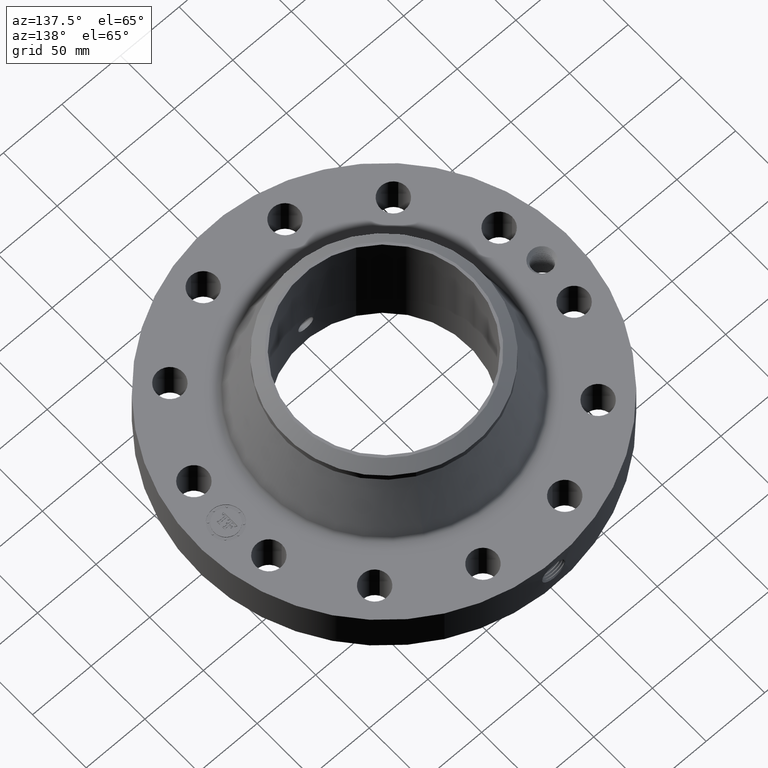
[diagram: clean part render]
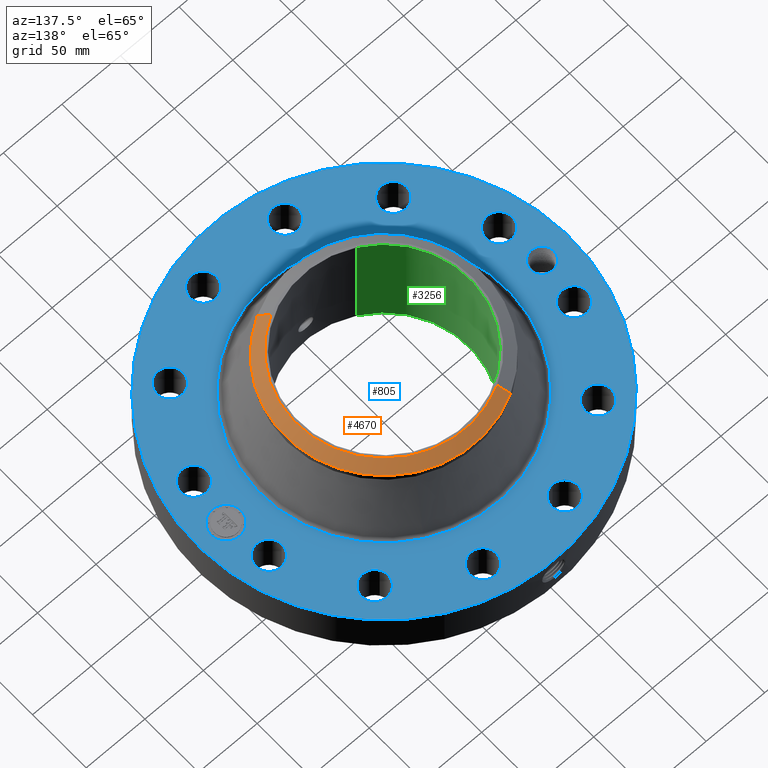
[diagram: same view with three faces highlighted in distinct colors, each labeled with its STEP entity id]
A machine part, auxiliary view with three faces highlighted in distinct colors.
Their STEP definitions:

[orange] entity #4670 — the highlighted conical surface has half-angle 52.5 deg.
#3497=AXIS2_PLACEMENT_3D('Circle Axis2P3D',#3495,#3496,$) ;
#3524=AXIS2_PLACEMENT_3D('Circle Axis2P3D',#3522,#3523,$) ;
#4298=AXIS2_PLACEMENT_3D('Circle Axis2P3D',#4296,#4297,$) ;
#4651=AXIS2_PLACEMENT_3D('Cone Axis2P3D',#4648,#4649,#4650) ;
#3492=CARTESIAN_POINT('Vertex',(1.58929566048,2.90918619268,3.72701587161)) ;
#3495=CARTESIAN_POINT('Axis2P3D Location',(0.,0.,3.72701587161)) ;
#3499=CARTESIAN_POINT('Vertex',(1.58929566048,-2.90918619268,3.72701587161)) ;
#3519=CARTESIAN_POINT('Vertex',(-1.58929566048,2.90918619268,3.72701587161)) ;
#3522=CARTESIAN_POINT('Axis2P3D Location',(0.,0.,3.72701587161)) ;
#4296=CARTESIAN_POINT('Axis2P3D Location',(0.,0.,4.00000000002)) ;
#4300=CARTESIAN_POINT('Vertex',(1.41873530636,-2.59697755866,4.00000000002)) ;
#4302=CARTESIAN_POINT('Vertex',(-1.41873530636,2.59697755866,4.00000000002)) ;
#4648=CARTESIAN_POINT('Axis2P3D Location',(0.,0.,4.00000000002)) ;
#4653=CARTESIAN_POINT('Line Origine',(-1.50401548342,2.75308187567,3.86350793581)) ;
#4658=CARTESIAN_POINT('Line Origine',(1.50401548342,-2.75308187567,3.86350793581)) ;
#3496=DIRECTION('Axis2P3D Direction',(0.,0.,-0.0393700787402)) ;
#3523=DIRECTION('Axis2P3D Direction',(0.,0.,-0.0393700787402)) ;
#4297=DIRECTION('Axis2P3D Direction',(0.,0.,-0.0393700787402)) ;
#4649=DIRECTION('Axis2P3D Direction',(-0.,-0.,-0.0393700787402)) ;
#4650=DIRECTION('Axis2P3D XDirection',(0.0188750212049,-0.0345504945626,0.)) ;
#4654=DIRECTION('Vector Direction',(-0.014974561121,0.02741075027,-0.023966985394)) ;
#4659=DIRECTION('Vector Direction',(0.014974561121,-0.02741075027,-0.023966985394)) ;
#4655=VECTOR('Line Direction',#4654,0.0393700787402) ;
#4660=VECTOR('Line Direction',#4659,0.0393700787402) ;
#4664=ORIENTED_EDGE('',*,*,#4657,.F.) ;
#4665=ORIENTED_EDGE('',*,*,#4304,.F.) ;
#4666=ORIENTED_EDGE('',*,*,#4662,.T.) ;
#4667=ORIENTED_EDGE('',*,*,#3501,.T.) ;
#4668=ORIENTED_EDGE('',*,*,#3526,.F.) ;
#4670=ADVANCED_FACE('PartBody',(#4669),#4652,.T.) ;
#3498=CIRCLE('generated circle',#3497,3.31500000001) ;
#3525=CIRCLE('generated circle',#3524,3.31500000001) ;
#4299=CIRCLE('generated circle',#4298,2.95924015749) ;
#4652=CONICAL_SURFACE('Cone',#4651,2.95924015749,0.916297857297) ;
#3501=EDGE_CURVE('',#3500,#3493,#3498,.F.) ;
#3526=EDGE_CURVE('',#3520,#3493,#3525,.T.) ;
#4304=EDGE_CURVE('',#4301,#4303,#4299,.F.) ;
#4657=EDGE_CURVE('',#4303,#3520,#4656,.T.) ;
#4662=EDGE_CURVE('',#4301,#3500,#4661,.T.) ;
#4663=EDGE_LOOP('',(#4664,#4665,#4666,#4667,#4668)) ;
#4669=FACE_OUTER_BOUND('',#4663,.T.) ;
#4656=LINE('Line',#4653,#4655) ;
#4661=LINE('Line',#4658,#4660) ;
#3493=VERTEX_POINT('',#3492) ;
#3500=VERTEX_POINT('',#3499) ;
#3520=VERTEX_POINT('',#3519) ;
#4301=VERTEX_POINT('',#4300) ;
#4303=VERTEX_POINT('',#4302) ;

[blue] entity #805 — the highlighted planar face has unit normal (0, 0, -1).
#58=AXIS2_PLACEMENT_3D('Circle Axis2P3D',#56,#57,$) ;
#430=AXIS2_PLACEMENT_3D('Circle Axis2P3D',#428,#429,$) ;
#529=AXIS2_PLACEMENT_3D('Plane Axis2P3D',#526,#527,#528) ;
#537=AXIS2_PLACEMENT_3D('Circle Axis2P3D',#535,#536,$) ;
#546=AXIS2_PLACEMENT_3D('Circle Axis2P3D',#544,#545,$) ;
#555=AXIS2_PLACEMENT_3D('Circle Axis2P3D',#553,#554,$) ;
#564=AXIS2_PLACEMENT_3D('Circle Axis2P3D',#562,#563,$) ;
#573=AXIS2_PLACEMENT_3D('Circle Axis2P3D',#571,#572,$) ;
#582=AXIS2_PLACEMENT_3D('Circle Axis2P3D',#580,#581,$) ;
#591=AXIS2_PLACEMENT_3D('Circle Axis2P3D',#589,#590,$) ;
#600=AXIS2_PLACEMENT_3D('Circle Axis2P3D',#598,#599,$) ;
#609=AXIS2_PLACEMENT_3D('Circle Axis2P3D',#607,#608,$) ;
#618=AXIS2_PLACEMENT_3D('Circle Axis2P3D',#616,#617,$) ;
#627=AXIS2_PLACEMENT_3D('Circle Axis2P3D',#625,#626,$) ;
#636=AXIS2_PLACEMENT_3D('Circle Axis2P3D',#634,#635,$) ;
#645=AXIS2_PLACEMENT_3D('Circle Axis2P3D',#643,#644,$) ;
#654=AXIS2_PLACEMENT_3D('Circle Axis2P3D',#652,#653,$) ;
#663=AXIS2_PLACEMENT_3D('Circle Axis2P3D',#661,#662,$) ;
#672=AXIS2_PLACEMENT_3D('Circle Axis2P3D',#670,#671,$) ;
#681=AXIS2_PLACEMENT_3D('Circle Axis2P3D',#679,#680,$) ;
#690=AXIS2_PLACEMENT_3D('Circle Axis2P3D',#688,#689,$) ;
#699=AXIS2_PLACEMENT_3D('Circle Axis2P3D',#697,#698,$) ;
#708=AXIS2_PLACEMENT_3D('Circle Axis2P3D',#706,#707,$) ;
#717=AXIS2_PLACEMENT_3D('Circle Axis2P3D',#715,#716,$) ;
#726=AXIS2_PLACEMENT_3D('Circle Axis2P3D',#724,#725,$) ;
#735=AXIS2_PLACEMENT_3D('Circle Axis2P3D',#733,#734,$) ;
#744=AXIS2_PLACEMENT_3D('Circle Axis2P3D',#742,#743,$) ;
#753=AXIS2_PLACEMENT_3D('Circle Axis2P3D',#751,#752,$) ;
#762=AXIS2_PLACEMENT_3D('Circle Axis2P3D',#760,#761,$) ;
#771=AXIS2_PLACEMENT_3D('Circle Axis2P3D',#769,#770,$) ;
#780=AXIS2_PLACEMENT_3D('Circle Axis2P3D',#778,#779,$) ;
#789=AXIS2_PLACEMENT_3D('Circle Axis2P3D',#787,#788,$) ;
#798=AXIS2_PLACEMENT_3D('Circle Axis2P3D',#796,#797,$) ;
#53=CARTESIAN_POINT('Vertex',(-2.99640961629,-5.48489101184,1.56000000001)) ;
#56=CARTESIAN_POINT('Axis2P3D Location',(0.,0.,1.56000000001)) ;
#60=CARTESIAN_POINT('Vertex',(2.99640961629,5.48489101184,1.56000000001)) ;
#428=CARTESIAN_POINT('Axis2P3D Location',(0.,0.,1.56000000001)) ;
#526=CARTESIAN_POINT('Axis2P3D Location',(0.,6.25000000003,1.56000000001)) ;
#535=CARTESIAN_POINT('Axis2P3D Location',(-5.31000000002,-3.35689481461E-015,1.56000000001)) ;
#539=CARTESIAN_POINT('Vertex',(-5.65061173186,0.186077037171,1.56000000001)) ;
#541=CARTESIAN_POINT('Vertex',(-4.96938826819,-0.186077037172,1.56000000001)) ;
#544=CARTESIAN_POINT('Axis2P3D Location',(-5.31000000002,-3.35689481461E-015,1.56000000001)) ;
#553=CARTESIAN_POINT('Axis2P3D Location',(5.12906613762,-1.3743291295,1.56000000001)) ;
#557=CARTESIAN_POINT('Vertex',(4.74292981038,-1.16338189251,1.56000000001)) ;
#559=CARTESIAN_POINT('Vertex',(5.51520246485,-1.58527636649,1.56000000001)) ;
#562=CARTESIAN_POINT('Axis2P3D Location',(5.12906613762,-1.3743291295,1.56000000001)) ;
#571=CARTESIAN_POINT('Axis2P3D Location',(0.,0.,1.56000000001)) ;
#575=CARTESIAN_POINT('Vertex',(-1.98593442529,-3.63522858162,1.56000000001)) ;
#577=CARTESIAN_POINT('Vertex',(1.98593442529,3.63522858162,1.56000000001)) ;
#580=CARTESIAN_POINT('Axis2P3D Location',(0.,0.,1.56000000001)) ;
#589=CARTESIAN_POINT('Axis2P3D Location',(3.75473700812,-3.75473700812,1.56000000001)) ;
#593=CARTESIAN_POINT('Vertex',(3.98366725833,-4.13049083782,1.56000000001)) ;
#595=CARTESIAN_POINT('Vertex',(3.5258067579,-3.37898317841,1.56000000001)) ;
#598=CARTESIAN_POINT('Axis2P3D Location',(3.75473700812,-3.75473700812,1.56000000001)) ;
#607=CARTESIAN_POINT('Axis2P3D Location',(1.3743291295,-5.12906613762,1.56000000001)) ;
#611=CARTESIAN_POINT('Vertex',(1.38471162703,-5.56894362482,1.56000000001)) ;
#613=CARTESIAN_POINT('Vertex',(1.36394663197,-4.68918865041,1.56000000001)) ;
#616=CARTESIAN_POINT('Axis2P3D Location',(1.3743291295,-5.12906613762,1.56000000001)) ;
#625=CARTESIAN_POINT('Axis2P3D Location',(-1.3743291295,-5.12906613762,1.56000000001)) ;
#629=CARTESIAN_POINT('Vertex',(-1.58527636649,-5.51520246485,1.56000000001)) ;
#631=CARTESIAN_POINT('Vertex',(-1.16338189251,-4.74292981038,1.56000000001)) ;
#634=CARTESIAN_POINT('Axis2P3D Location',(-1.3743291295,-5.12906613762,1.56000000001)) ;
#643=CARTESIAN_POINT('Axis2P3D Location',(-3.75473700812,-3.75473700812,1.56000000001)) ;
#647=CARTESIAN_POINT('Vertex',(-4.13049083782,-3.98366725833,1.56000000001)) ;
#649=CARTESIAN_POINT('Vertex',(-3.37898317841,-3.5258067579,1.56000000001)) ;
#652=CARTESIAN_POINT('Axis2P3D Location',(-3.75473700812,-3.75473700812,1.56000000001)) ;
#661=CARTESIAN_POINT('Axis2P3D Location',(-5.12906613762,-1.3743291295,1.56000000001)) ;
#665=CARTESIAN_POINT('Vertex',(-5.56894362482,-1.38471162703,1.56000000001)) ;
#667=CARTESIAN_POINT('Vertex',(-4.68918865041,-1.36394663197,1.56000000001)) ;
#670=CARTESIAN_POINT('Axis2P3D Location',(-5.12906613762,-1.3743291295,1.56000000001)) ;
#679=CARTESIAN_POINT('Axis2P3D Location',(-5.12906613762,1.3743291295,1.56000000001)) ;
#683=CARTESIAN_POINT('Vertex',(-5.51520246485,1.58527636649,1.56000000001)) ;
#685=CARTESIAN_POINT('Vertex',(-4.74292981038,1.16338189251,1.56000000001)) ;
#688=CARTESIAN_POINT('Axis2P3D Location',(-5.12906613762,1.3743291295,1.56000000001)) ;
#697=CARTESIAN_POINT('Axis2P3D Location',(-3.75473700812,3.75473700812,1.56000000001)) ;
#701=CARTESIAN_POINT('Vertex',(-3.98366725833,4.13049083782,1.56000000001)) ;
#703=CARTESIAN_POINT('Vertex',(-3.5258067579,3.37898317841,1.56000000001)) ;
#706=CARTESIAN_POINT('Axis2P3D Location',(-3.75473700812,3.75473700812,1.56000000001)) ;
#715=CARTESIAN_POINT('Axis2P3D Location',(-1.3743291295,5.12906613762,1.56000000001)) ;
#719=CARTESIAN_POINT('Vertex',(-1.38471162703,5.56894362482,1.56000000001)) ;
#721=CARTESIAN_POINT('Vertex',(-1.36394663197,4.68918865041,1.56000000001)) ;
#724=CARTESIAN_POINT('Axis2P3D Location',(-1.3743291295,5.12906613762,1.56000000001)) ;
#733=CARTESIAN_POINT('Axis2P3D Location',(1.3743291295,5.12906613762,1.56000000001)) ;
#737=CARTESIAN_POINT('Vertex',(1.58527636649,5.51520246485,1.56000000001)) ;
#739=CARTESIAN_POINT('Vertex',(1.16338189251,4.74292981038,1.56000000001)) ;
#742=CARTESIAN_POINT('Axis2P3D Location',(1.3743291295,5.12906613762,1.56000000001)) ;
#751=CARTESIAN_POINT('Axis2P3D Location',(3.75473700812,3.75473700812,1.56000000001)) ;
#755=CARTESIAN_POINT('Vertex',(4.13049083782,3.98366725833,1.56000000001)) ;
#757=CARTESIAN_POINT('Vertex',(3.37898317841,3.5258067579,1.56000000001)) ;
#760=CARTESIAN_POINT('Axis2P3D Location',(3.75473700812,3.75473700812,1.56000000001)) ;
#769=CARTESIAN_POINT('Axis2P3D Location',(5.12906613762,1.3743291295,1.56000000001)) ;
#773=CARTESIAN_POINT('Vertex',(5.56894362482,1.38471162703,1.56000000001)) ;
#775=CARTESIAN_POINT('Vertex',(4.68918865041,1.36394663197,1.56000000001)) ;
#778=CARTESIAN_POINT('Axis2P3D Location',(5.12906613762,1.3743291295,1.56000000001)) ;
#787=CARTESIAN_POINT('Axis2P3D Location',(5.31000000002,0.,1.56000000001)) ;
#791=CARTESIAN_POINT('Vertex',(5.31000000002,0.499999995002,1.56000000001)) ;
#793=CARTESIAN_POINT('Vertex',(5.31000000002,-0.499999995002,1.56000000001)) ;
#796=CARTESIAN_POINT('Axis2P3D Location',(5.31000000002,0.,1.56000000001)) ;
#57=DIRECTION('Axis2P3D Direction',(0.,0.,-0.0393700787402)) ;
#429=DIRECTION('Axis2P3D Direction',(0.,0.,-0.0393700787402)) ;
#527=DIRECTION('Axis2P3D Direction',(0.,0.,-0.0393700787402)) ;
#528=DIRECTION('Axis2P3D XDirection',(0.0393700787402,0.,0.)) ;
#536=DIRECTION('Axis2P3D Direction',(0.,0.,-0.0393700787402)) ;
#545=DIRECTION('Axis2P3D Direction',(0.,0.,-0.0393700787402)) ;
#554=DIRECTION('Axis2P3D Direction',(0.,0.,-0.0393700787402)) ;
#563=DIRECTION('Axis2P3D Direction',(0.,0.,-0.0393700787402)) ;
#572=DIRECTION('Axis2P3D Direction',(0.,0.,-0.0393700787402)) ;
#581=DIRECTION('Axis2P3D Direction',(0.,0.,-0.0393700787402)) ;
#590=DIRECTION('Axis2P3D Direction',(0.,0.,-0.0393700787402)) ;
#599=DIRECTION('Axis2P3D Direction',(0.,0.,-0.0393700787402)) ;
#608=DIRECTION('Axis2P3D Direction',(0.,0.,-0.0393700787402)) ;
#617=DIRECTION('Axis2P3D Direction',(0.,0.,-0.0393700787402)) ;
#626=DIRECTION('Axis2P3D Direction',(0.,0.,-0.0393700787402)) ;
#635=DIRECTION('Axis2P3D Direction',(0.,0.,-0.0393700787402)) ;
#644=DIRECTION('Axis2P3D Direction',(0.,0.,-0.0393700787402)) ;
#653=DIRECTION('Axis2P3D Direction',(0.,0.,-0.0393700787402)) ;
#662=DIRECTION('Axis2P3D Direction',(0.,0.,-0.0393700787402)) ;
#671=DIRECTION('Axis2P3D Direction',(0.,0.,-0.0393700787402)) ;
#680=DIRECTION('Axis2P3D Direction',(0.,0.,-0.0393700787402)) ;
#689=DIRECTION('Axis2P3D Direction',(0.,0.,-0.0393700787402)) ;
#698=DIRECTION('Axis2P3D Direction',(0.,0.,-0.0393700787402)) ;
#707=DIRECTION('Axis2P3D Direction',(0.,0.,-0.0393700787402)) ;
#716=DIRECTION('Axis2P3D Direction',(0.,0.,-0.0393700787402)) ;
#725=DIRECTION('Axis2P3D Direction',(0.,0.,-0.0393700787402)) ;
#734=DIRECTION('Axis2P3D Direction',(0.,0.,-0.0393700787402)) ;
#743=DIRECTION('Axis2P3D Direction',(0.,0.,-0.0393700787402)) ;
#752=DIRECTION('Axis2P3D Direction',(0.,0.,-0.0393700787402)) ;
#761=DIRECTION('Axis2P3D Direction',(0.,0.,-0.0393700787402)) ;
#770=DIRECTION('Axis2P3D Direction',(0.,0.,-0.0393700787402)) ;
#779=DIRECTION('Axis2P3D Direction',(0.,0.,-0.0393700787402)) ;
#788=DIRECTION('Axis2P3D Direction',(0.,0.,-0.0393700787402)) ;
#797=DIRECTION('Axis2P3D Direction',(0.,0.,-0.0393700787402)) ;
#532=ORIENTED_EDGE('',*,*,#432,.F.) ;
#533=ORIENTED_EDGE('',*,*,#62,.F.) ;
#550=ORIENTED_EDGE('',*,*,#543,.T.) ;
#551=ORIENTED_EDGE('',*,*,#548,.T.) ;
#568=ORIENTED_EDGE('',*,*,#561,.T.) ;
#569=ORIENTED_EDGE('',*,*,#566,.T.) ;
#586=ORIENTED_EDGE('',*,*,#579,.T.) ;
#587=ORIENTED_EDGE('',*,*,#584,.T.) ;
#604=ORIENTED_EDGE('',*,*,#597,.T.) ;
#605=ORIENTED_EDGE('',*,*,#602,.T.) ;
#622=ORIENTED_EDGE('',*,*,#615,.T.) ;
#623=ORIENTED_EDGE('',*,*,#620,.T.) ;
#640=ORIENTED_EDGE('',*,*,#633,.T.) ;
#641=ORIENTED_EDGE('',*,*,#638,.T.) ;
#658=ORIENTED_EDGE('',*,*,#651,.T.) ;
#659=ORIENTED_EDGE('',*,*,#656,.T.) ;
#676=ORIENTED_EDGE('',*,*,#669,.T.) ;
#677=ORIENTED_EDGE('',*,*,#674,.T.) ;
#694=ORIENTED_EDGE('',*,*,#687,.T.) ;
#695=ORIENTED_EDGE('',*,*,#692,.T.) ;
#712=ORIENTED_EDGE('',*,*,#705,.T.) ;
#713=ORIENTED_EDGE('',*,*,#710,.T.) ;
#730=ORIENTED_EDGE('',*,*,#723,.T.) ;
#731=ORIENTED_EDGE('',*,*,#728,.T.) ;
#748=ORIENTED_EDGE('',*,*,#741,.T.) ;
#749=ORIENTED_EDGE('',*,*,#746,.T.) ;
#766=ORIENTED_EDGE('',*,*,#759,.T.) ;
#767=ORIENTED_EDGE('',*,*,#764,.T.) ;
#784=ORIENTED_EDGE('',*,*,#777,.T.) ;
#785=ORIENTED_EDGE('',*,*,#782,.T.) ;
#802=ORIENTED_EDGE('',*,*,#795,.T.) ;
#803=ORIENTED_EDGE('',*,*,#800,.T.) ;
#552=FACE_BOUND('',#549,.T.) ;
#570=FACE_BOUND('',#567,.T.) ;
#588=FACE_BOUND('',#585,.T.) ;
#606=FACE_BOUND('',#603,.T.) ;
#624=FACE_BOUND('',#621,.T.) ;
#642=FACE_BOUND('',#639,.T.) ;
#660=FACE_BOUND('',#657,.T.) ;
#678=FACE_BOUND('',#675,.T.) ;
#696=FACE_BOUND('',#693,.T.) ;
#714=FACE_BOUND('',#711,.T.) ;
#732=FACE_BOUND('',#729,.T.) ;
#750=FACE_BOUND('',#747,.T.) ;
#768=FACE_BOUND('',#765,.T.) ;
#786=FACE_BOUND('',#783,.T.) ;
#804=FACE_BOUND('',#801,.T.) ;
#805=ADVANCED_FACE('PartBody',(#534,#552,#570,#588,#606,#624,#642,#660,#678,#696,#714,#732,#750,#768,#786,#804),#530,.F.) ;
#59=CIRCLE('generated circle',#58,6.25000000003) ;
#431=CIRCLE('generated circle',#430,6.25000000003) ;
#538=CIRCLE('generated circle',#537,0.388125000002) ;
#547=CIRCLE('generated circle',#546,0.388125000002) ;
#556=CIRCLE('generated circle',#555,0.440000000002) ;
#565=CIRCLE('generated circle',#564,0.440000000002) ;
#574=CIRCLE('generated circle',#573,4.14232089319) ;
#583=CIRCLE('generated circle',#582,4.14232089319) ;
#592=CIRCLE('generated circle',#591,0.440000000002) ;
#601=CIRCLE('generated circle',#600,0.440000000002) ;
#610=CIRCLE('generated circle',#609,0.440000000002) ;
#619=CIRCLE('generated circle',#618,0.440000000002) ;
#628=CIRCLE('generated circle',#627,0.440000000002) ;
#637=CIRCLE('generated circle',#636,0.440000000002) ;
#646=CIRCLE('generated circle',#645,0.440000000002) ;
#655=CIRCLE('generated circle',#654,0.440000000002) ;
#664=CIRCLE('generated circle',#663,0.440000000002) ;
#673=CIRCLE('generated circle',#672,0.440000000002) ;
#682=CIRCLE('generated circle',#681,0.440000000002) ;
#691=CIRCLE('generated circle',#690,0.440000000002) ;
#700=CIRCLE('generated circle',#699,0.440000000002) ;
#709=CIRCLE('generated circle',#708,0.440000000002) ;
#718=CIRCLE('generated circle',#717,0.440000000002) ;
#727=CIRCLE('generated circle',#726,0.440000000002) ;
#736=CIRCLE('generated circle',#735,0.440000000002) ;
#745=CIRCLE('generated circle',#744,0.440000000002) ;
#754=CIRCLE('generated circle',#753,0.440000000002) ;
#763=CIRCLE('generated circle',#762,0.440000000002) ;
#772=CIRCLE('generated circle',#771,0.440000000002) ;
#781=CIRCLE('generated circle',#780,0.440000000002) ;
#790=CIRCLE('generated circle',#789,0.499999995002) ;
#799=CIRCLE('generated circle',#798,0.499999995002) ;
#62=EDGE_CURVE('',#54,#61,#59,.T.) ;
#432=EDGE_CURVE('',#61,#54,#431,.T.) ;
#543=EDGE_CURVE('',#540,#542,#538,.T.) ;
#548=EDGE_CURVE('',#542,#540,#547,.T.) ;
#561=EDGE_CURVE('',#558,#560,#556,.T.) ;
#566=EDGE_CURVE('',#560,#558,#565,.T.) ;
#579=EDGE_CURVE('',#576,#578,#574,.T.) ;
#584=EDGE_CURVE('',#578,#576,#583,.T.) ;
#597=EDGE_CURVE('',#594,#596,#592,.T.) ;
#602=EDGE_CURVE('',#596,#594,#601,.T.) ;
#615=EDGE_CURVE('',#612,#614,#610,.T.) ;
#620=EDGE_CURVE('',#614,#612,#619,.T.) ;
#633=EDGE_CURVE('',#630,#632,#628,.T.) ;
#638=EDGE_CURVE('',#632,#630,#637,.T.) ;
#651=EDGE_CURVE('',#648,#650,#646,.T.) ;
#656=EDGE_CURVE('',#650,#648,#655,.T.) ;
#669=EDGE_CURVE('',#666,#668,#664,.T.) ;
#674=EDGE_CURVE('',#668,#666,#673,.T.) ;
#687=EDGE_CURVE('',#684,#686,#682,.T.) ;
#692=EDGE_CURVE('',#686,#684,#691,.T.) ;
#705=EDGE_CURVE('',#702,#704,#700,.T.) ;
#710=EDGE_CURVE('',#704,#702,#709,.T.) ;
#723=EDGE_CURVE('',#720,#722,#718,.T.) ;
#728=EDGE_CURVE('',#722,#720,#727,.T.) ;
#741=EDGE_CURVE('',#738,#740,#736,.T.) ;
#746=EDGE_CURVE('',#740,#738,#745,.T.) ;
#759=EDGE_CURVE('',#756,#758,#754,.T.) ;
#764=EDGE_CURVE('',#758,#756,#763,.T.) ;
#777=EDGE_CURVE('',#774,#776,#772,.T.) ;
#782=EDGE_CURVE('',#776,#774,#781,.T.) ;
#795=EDGE_CURVE('',#792,#794,#790,.T.) ;
#800=EDGE_CURVE('',#794,#792,#799,.T.) ;
#531=EDGE_LOOP('',(#532,#533)) ;
#549=EDGE_LOOP('',(#550,#551)) ;
#567=EDGE_LOOP('',(#568,#569)) ;
#585=EDGE_LOOP('',(#586,#587)) ;
#603=EDGE_LOOP('',(#604,#605)) ;
#621=EDGE_LOOP('',(#622,#623)) ;
#639=EDGE_LOOP('',(#640,#641)) ;
#657=EDGE_LOOP('',(#658,#659)) ;
#675=EDGE_LOOP('',(#676,#677)) ;
#693=EDGE_LOOP('',(#694,#695)) ;
#711=EDGE_LOOP('',(#712,#713)) ;
#729=EDGE_LOOP('',(#730,#731)) ;
#747=EDGE_LOOP('',(#748,#749)) ;
#765=EDGE_LOOP('',(#766,#767)) ;
#783=EDGE_LOOP('',(#784,#785)) ;
#801=EDGE_LOOP('',(#802,#803)) ;
#534=FACE_OUTER_BOUND('',#531,.T.) ;
#530=PLANE('',#529) ;
#54=VERTEX_POINT('',#53) ;
#61=VERTEX_POINT('',#60) ;
#540=VERTEX_POINT('',#539) ;
#542=VERTEX_POINT('',#541) ;
#558=VERTEX_POINT('',#557) ;
#560=VERTEX_POINT('',#559) ;
#576=VERTEX_POINT('',#575) ;
#578=VERTEX_POINT('',#577) ;
#594=VERTEX_POINT('',#593) ;
#596=VERTEX_POINT('',#595) ;
#612=VERTEX_POINT('',#611) ;
#614=VERTEX_POINT('',#613) ;
#630=VERTEX_POINT('',#629) ;
#632=VERTEX_POINT('',#631) ;
#648=VERTEX_POINT('',#647) ;
#650=VERTEX_POINT('',#649) ;
#666=VERTEX_POINT('',#665) ;
#668=VERTEX_POINT('',#667) ;
#684=VERTEX_POINT('',#683) ;
#686=VERTEX_POINT('',#685) ;
#702=VERTEX_POINT('',#701) ;
#704=VERTEX_POINT('',#703) ;
#720=VERTEX_POINT('',#719) ;
#722=VERTEX_POINT('',#721) ;
#738=VERTEX_POINT('',#737) ;
#740=VERTEX_POINT('',#739) ;
#756=VERTEX_POINT('',#755) ;
#758=VERTEX_POINT('',#757) ;
#774=VERTEX_POINT('',#773) ;
#776=VERTEX_POINT('',#775) ;
#792=VERTEX_POINT('',#791) ;
#794=VERTEX_POINT('',#793) ;

[green] entity #3256 — the highlighted cylindrical surface (partial cylindrical patch) has radius 73.1647 mm, axis along (0, 0, -1).
#2387=AXIS2_PLACEMENT_3D('Circle Axis2P3D',#2385,#2386,$) ;
#3133=AXIS2_PLACEMENT_3D('Cylinder Axis2P3D',#3130,#3131,#3132) ;
#3205=AXIS2_PLACEMENT_3D('Circle Axis2P3D',#3203,#3204,$) ;
#2380=CARTESIAN_POINT('Vertex',(1.38098526395,2.52787656954,-4.47585975282E-015)) ;
#2382=CARTESIAN_POINT('Vertex',(-1.38098526395,-2.52787656954,-4.47585975282E-015)) ;
#2385=CARTESIAN_POINT('Axis2P3D Location',(0.,0.,0.)) ;
#3130=CARTESIAN_POINT('Axis2P3D Location',(0.,0.,2.00000000001)) ;
#3139=CARTESIAN_POINT('Vertex',(1.38098526395,2.52787656954,4.00000000002)) ;
#3141=CARTESIAN_POINT('Vertex',(-1.38098526395,-2.52787656954,4.00000000002)) ;
#3144=CARTESIAN_POINT('Line Origine',(1.38098526395,2.52787656954,2.00000000001)) ;
#3149=CARTESIAN_POINT('Line Origine',(-1.38098526395,-2.52787656954,2.00000000001)) ;
#3203=CARTESIAN_POINT('Axis2P3D Location',(0.,0.,4.00000000002)) ;
#3215=CARTESIAN_POINT('Control Point',(0.219395640473,2.87213262281,1.05985638466)) ;
#3216=CARTESIAN_POINT('Control Point',(0.206922351995,2.87308542878,1.08268858606)) ;
#3217=CARTESIAN_POINT('Control Point',(0.191481712057,2.87419679655,1.10389307758)) ;
#3218=CARTESIAN_POINT('Control Point',(0.173354194299,2.87538062812,1.12296014846)) ;
#3219=CARTESIAN_POINT('Control Point',(0.112199588944,2.87880172466,1.17240469315)) ;
#3220=CARTESIAN_POINT('Control Point',(0.0350911619223,2.88102435561,1.19594771471)) ;
#3221=CARTESIAN_POINT('Control Point',(-0.0194446568665,2.88119275664,1.19761224592)) ;
#3222=CARTESIAN_POINT('Control Point',(-0.123995866126,2.87875349424,1.17252930704)) ;
#3223=CARTESIAN_POINT('Control Point',(-0.203020087941,2.87369160983,1.0997523434)) ;
#3224=CARTESIAN_POINT('Control Point',(-0.232033505243,2.87119266303,1.05361428799)) ;
#3225=CARTESIAN_POINT('Control Point',(-0.255810454024,2.86912592234,0.975428323801)) ;
#3226=CARTESIAN_POINT('Control Point',(-0.248335741927,2.86977503044,0.895964558553)) ;
#3227=CARTESIAN_POINT('Control Point',(-0.24210070173,2.87032479534,0.869317071046)) ;
#3228=CARTESIAN_POINT('Control Point',(-0.232348019491,2.87114322021,0.843852786111)) ;
#3229=CARTESIAN_POINT('Control Point',(-0.219395640473,2.87213262281,0.820143615352)) ;
#3230=CARTESIAN_POINT('Vertex',(0.219395640473,2.87213262281,1.05985638466)) ;
#3232=CARTESIAN_POINT('Vertex',(-0.219395640473,2.87213262281,0.820143615352)) ;
#3236=CARTESIAN_POINT('Control Point',(-0.219395640473,2.87213262281,0.820143615352)) ;
#3237=CARTESIAN_POINT('Control Point',(-0.206922351988,2.87308542878,0.79731141393)) ;
#3238=CARTESIAN_POINT('Control Point',(-0.191481712039,2.87419679655,0.776106922407)) ;
#3239=CARTESIAN_POINT('Control Point',(-0.173354194324,2.87538062812,0.757039851566)) ;
#3240=CARTESIAN_POINT('Control Point',(-0.112199588962,2.87880172466,0.70759530686)) ;
#3241=CARTESIAN_POINT('Control Point',(-0.0350911619282,2.88102435561,0.684052285299)) ;
#3242=CARTESIAN_POINT('Control Point',(0.0194446568701,2.88119275664,0.682387754084)) ;
#3243=CARTESIAN_POINT('Control Point',(0.123995866111,2.87875349424,0.70747069297)) ;
#3244=CARTESIAN_POINT('Control Point',(0.203020087917,2.87369160983,0.780247656582)) ;
#3245=CARTESIAN_POINT('Control Point',(0.232033505252,2.87119266303,0.826385712044)) ;
#3246=CARTESIAN_POINT('Control Point',(0.255810454029,2.86912592234,0.904571676246)) ;
#3247=CARTESIAN_POINT('Control Point',(0.248335741923,2.86977503044,0.984035441504)) ;
#3248=CARTESIAN_POINT('Control Point',(0.242100701748,2.87032479534,1.01068292892)) ;
#3249=CARTESIAN_POINT('Control Point',(0.232348019503,2.87114322021,1.03614721387)) ;
#3250=CARTESIAN_POINT('Control Point',(0.219395640473,2.87213262281,1.05985638466)) ;
#2386=DIRECTION('Axis2P3D Direction',(0.,0.,-0.0393700787402)) ;
#3131=DIRECTION('Axis2P3D Direction',(0.,0.,-0.0393700787402)) ;
#3132=DIRECTION('Axis2P3D XDirection',(-0.0188750212049,-0.0345504945626,0.)) ;
#3145=DIRECTION('Vector Direction',(0.,0.,-0.0393700787402)) ;
#3150=DIRECTION('Vector Direction',(0.,0.,-0.0393700787402)) ;
#3204=DIRECTION('Axis2P3D Direction',(0.,0.,-0.0393700787402)) ;
#3146=VECTOR('Line Direction',#3145,0.0393700787402) ;
#3151=VECTOR('Line Direction',#3150,0.0393700787402) ;
#3209=ORIENTED_EDGE('',*,*,#3207,.F.) ;
#3210=ORIENTED_EDGE('',*,*,#3153,.T.) ;
#3211=ORIENTED_EDGE('',*,*,#2389,.T.) ;
#3212=ORIENTED_EDGE('',*,*,#3148,.F.) ;
#3253=ORIENTED_EDGE('',*,*,#3234,.F.) ;
#3254=ORIENTED_EDGE('',*,*,#3251,.F.) ;
#3255=FACE_BOUND('',#3252,.T.) ;
#3256=ADVANCED_FACE('PartBody',(#3213,#3255),#3134,.F.) ;
#3214=B_SPLINE_CURVE_WITH_KNOTS('',5,(#3215,#3216,#3217,#3218,#3219,#3220,#3221,#3222,#3223,#3224,#3225,#3226,#3227,#3228,#3229),.UNSPECIFIED.,.F.,.U.,(6,3,3,3,6),(0.,4.67594679138,14.0198370773,23.3697183289,28.2252650609),.UNSPECIFIED.) ;
#3235=B_SPLINE_CURVE_WITH_KNOTS('',5,(#3236,#3237,#3238,#3239,#3240,#3241,#3242,#3243,#3244,#3245,#3246,#3247,#3248,#3249,#3250),.UNSPECIFIED.,.F.,.U.,(6,3,3,3,6),(0.,4.67594679415,14.0198370797,23.3697183284,28.225265065),.UNSPECIFIED.) ;
#2388=CIRCLE('generated circle',#2387,2.88050000001) ;
#3206=CIRCLE('generated circle',#3205,2.88050000001) ;
#3134=CYLINDRICAL_SURFACE('generated cylinder',#3133,2.88050000001) ;
#2389=EDGE_CURVE('',#2383,#2381,#2388,.T.) ;
#3148=EDGE_CURVE('',#3140,#2381,#3147,.T.) ;
#3153=EDGE_CURVE('',#3142,#2383,#3152,.T.) ;
#3207=EDGE_CURVE('',#3142,#3140,#3206,.T.) ;
#3234=EDGE_CURVE('',#3231,#3233,#3214,.T.) ;
#3251=EDGE_CURVE('',#3233,#3231,#3235,.T.) ;
#3208=EDGE_LOOP('',(#3209,#3210,#3211,#3212)) ;
#3252=EDGE_LOOP('',(#3253,#3254)) ;
#3213=FACE_OUTER_BOUND('',#3208,.T.) ;
#3147=LINE('Line',#3144,#3146) ;
#3152=LINE('Line',#3149,#3151) ;
#2381=VERTEX_POINT('',#2380) ;
#2383=VERTEX_POINT('',#2382) ;
#3140=VERTEX_POINT('',#3139) ;
#3142=VERTEX_POINT('',#3141) ;
#3231=VERTEX_POINT('',#3230) ;
#3233=VERTEX_POINT('',#3232) ;